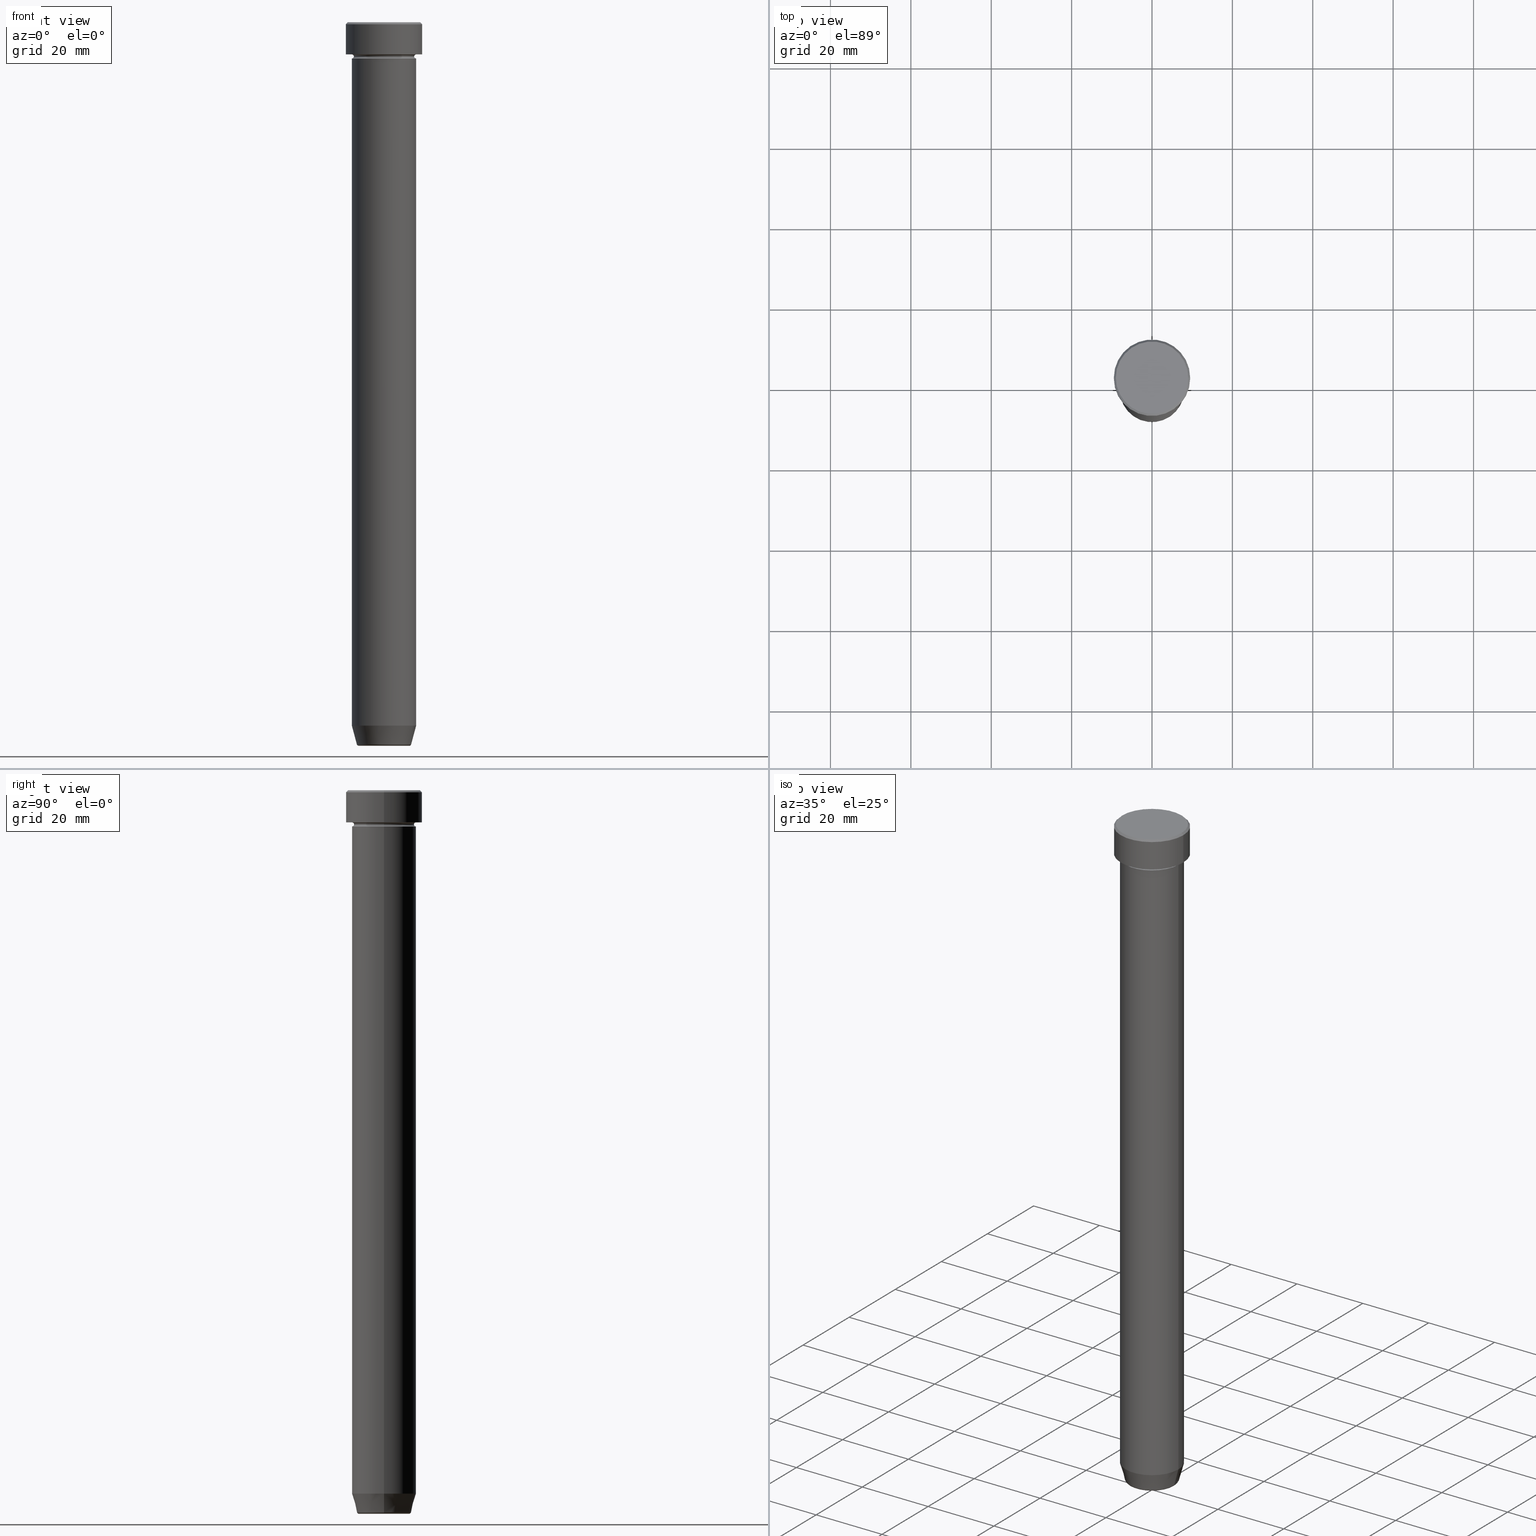
[diagram: canonical four-view strip — front | top / right | iso, engineering-drawing reading convention]
A machine part, canonical four-view strip (front | top / right | iso — engineering-drawing reading convention). The complete STEP part file that produces these views, byte-faithful:
ISO-10303-21;
HEADER;
FILE_DESCRIPTION (( 'STEP AP203' ),
    '1' );
FILE_NAME ('b710.STEP',
    '2024-01-02T22:10:45',
    ( '' ),
    ( '' ),
    'SwSTEP 2.0',
    'SolidWorks 2019',
    '' );
FILE_SCHEMA (( 'CONFIG_CONTROL_DESIGN' ));
ENDSEC;

DATA;
#1 = DIRECTION ( 'NONE',  ( 1.000000000000000000, 0.000000000000000000, 0.000000000000000000 ) ) ;
#2 = CLOSED_SHELL ( 'NONE', ( #471, #402, #593, #491, #192, #5, #418, #537, #510, #165, #506, #456, #296 ) ) ;
#3 = CIRCLE ( 'NONE', #404, 8.000000000000000000 ) ;
#4 = DIRECTION ( 'NONE',  ( 1.000000000000000000, 0.000000000000000000, 0.000000000000000000 ) ) ;
#5 = ADVANCED_FACE ( 'NONE', ( #388 ), #137, .T. ) ;
#6 = MECHANICAL_CONTEXT ( 'NONE', #494, 'mechanical' ) ;
#7 = DIRECTION ( 'NONE',  ( 1.000000000000000000, 0.000000000000000000, 0.000000000000000000 ) ) ;
#8 = ORIENTED_EDGE ( 'NONE', *, *, #336, .T. ) ;
#9 = DIRECTION ( 'NONE',  ( -1.000000000000000000, -1.224646799147353454E-16, 0.000000000000000000 ) ) ;
#10 = CIRCLE ( 'NONE', #136, 8.000000000000000000 ) ;
#11 = LOCAL_TIME ( 23, 10, 45.00000000000000000, #207 ) ;
#12 = DIRECTION ( 'NONE',  ( 1.000000000000000000, 0.000000000000000000, 0.000000000000000000 ) ) ;
#13 = EDGE_CURVE ( 'NONE', #229, #263, #346, .T. ) ;
#14 = CARTESIAN_POINT ( 'NONE',  ( -8.000000000000000000, 9.797174393178825657E-16, 0.000000000000000000 ) ) ;
#15 = CALENDAR_DATE ( 2024, 2, 1 ) ;
#16 = FACE_OUTER_BOUND ( 'NONE', #531, .T. ) ;
#17 = EDGE_LOOP ( 'NONE', ( #349, #227, #99, #46 ) ) ;
#18 = PERSON_AND_ORGANIZATION ( #41, #422 ) ;
#19 = FACE_OUTER_BOUND ( 'NONE', #238, .T. ) ;
#20 = AXIS2_PLACEMENT_3D ( 'NONE', #246, #209, #517 ) ;
#21 = DIRECTION ( 'NONE',  ( -0.000000000000000000, -0.000000000000000000, 1.000000000000000000 ) ) ;
#22 = EDGE_CURVE ( 'NONE', #212, #40, #261, .T. ) ;
#23 = PERSON_AND_ORGANIZATION ( #41, #422 ) ;
#24 = DIRECTION ( 'NONE',  ( -0.000000000000000000, -0.000000000000000000, 1.000000000000000000 ) ) ;
#25 = ORIENTED_EDGE ( 'NONE', *, *, #130, .T. ) ;
#26 = ORIENTED_EDGE ( 'NONE', *, *, #437, .T. ) ;
#27 = CARTESIAN_POINT ( 'NONE',  ( 0.000000000000000000, 0.000000000000000000, -8.000000000000000000 ) ) ;
#28 = CARTESIAN_POINT ( 'NONE',  ( -8.000000000000000000, 9.797174393178825657E-16, -8.500000000000000000 ) ) ;
#29 = AXIS2_PLACEMENT_3D ( 'NONE', #368, #559, #4 ) ;
#30 = AXIS2_PLACEMENT_3D ( 'NONE', #101, #503, #189 ) ;
#31 = EDGE_CURVE ( 'NONE', #54, #538, #279, .T. ) ;
#32 = FACE_OUTER_BOUND ( 'NONE', #533, .T. ) ;
#33 = ORIENTED_EDGE ( 'NONE', *, *, #175, .F. ) ;
#34 = DIRECTION ( 'NONE',  ( 0.000000000000000000, 0.000000000000000000, -1.000000000000000000 ) ) ;
#35 = EDGE_LOOP ( 'NONE', ( #582, #310, #464, #473 ) ) ;
#36 = ORIENTED_EDGE ( 'NONE', *, *, #365, .F. ) ;
#37 = CARTESIAN_POINT ( 'NONE',  ( -7.500000000000000000, 9.491012693391985815E-16, -8.500000000000000000 ) ) ;
#38 = CIRCLE ( 'NONE', #374, 7.500000000000000000 ) ;
#39 = ORIENTED_EDGE ( 'NONE', *, *, #395, .T. ) ;
#40 = VERTEX_POINT ( 'NONE', #452 ) ;
#41 = PERSON ( 'NEUR�EN�', 'NEUR�EN�', 'NEUR�EN�', ('NEUR�EN�'), ('NEUR�EN�'), ('NEUR�EN�') ) ;
#42 = EDGE_CURVE ( 'NONE', #40, #273, #156, .T. ) ;
#43 = CYLINDRICAL_SURFACE ( 'NONE', #470, 8.000000000000000000 ) ;
#44 = VERTEX_POINT ( 'NONE', #557 ) ;
#45 = EDGE_LOOP ( 'NONE', ( #399, #141 ) ) ;
#46 = ORIENTED_EDGE ( 'NONE', *, *, #86, .F. ) ;
#47 = APPLICATION_PROTOCOL_DEFINITION ( 'international standard', 'config_control_design', 1994, #494 ) ;
#48 = CARTESIAN_POINT ( 'NONE',  ( 0.000000000000000000, 0.000000000000000000, -8.500000000000000000 ) ) ;
#49 = EDGE_CURVE ( 'NONE', #273, #40, #589, .T. ) ;
#50 = AXIS2_PLACEMENT_3D ( 'NONE', #446, #61, #496 ) ;
#51 = VECTOR ( 'NONE', #581, 999.9999999999998863 ) ;
#52 = CARTESIAN_POINT ( 'NONE',  ( 0.000000000000000000, 0.000000000000000000, -8.500000000000000000 ) ) ;
#53 = DIRECTION ( 'NONE',  ( -1.000000000000000000, 0.000000000000000000, 0.000000000000000000 ) ) ;
#54 = VERTEX_POINT ( 'NONE', #186 ) ;
#55 = ORIENTED_EDGE ( 'NONE', *, *, #69, .T. ) ;
#56 = CYLINDRICAL_SURFACE ( 'NONE', #90, 9.500000000000000000 ) ;
#57 = EDGE_LOOP ( 'NONE', ( #488, #216, #390, #177 ) ) ;
#58 = CARTESIAN_POINT ( 'NONE',  ( 9.500000000000000000, 0.000000000000000000, -8.000000000000000000 ) ) ;
#59 = EDGE_CURVE ( 'NONE', #308, #585, #406, .T. ) ;
#60 = CARTESIAN_POINT ( 'NONE',  ( -6.276590543854910997, 7.982336011935130216E-16, -180.0000000000000000 ) ) ;
#61 = DIRECTION ( 'NONE',  ( 0.000000000000000000, 0.000000000000000000, -1.000000000000000000 ) ) ;
#62 = CIRCLE ( 'NONE', #480, 0.5000000000000004441 ) ;
#63 = APPROVAL_ROLE ( '' ) ;
#64 = DIRECTION ( 'NONE',  ( -0.000000000000000000, -0.000000000000000000, 1.000000000000000000 ) ) ;
#65 = SHAPE_DEFINITION_REPRESENTATION ( #385, #580 ) ;
#66 = FACE_OUTER_BOUND ( 'NONE', #551, .T. ) ;
#67 = DATE_AND_TIME ( #15, #11 ) ;
#68 = LINE ( 'NONE', #378, #241 ) ;
#69 = EDGE_CURVE ( 'NONE', #525, #273, #408, .T. ) ;
#70 = AXIS2_PLACEMENT_3D ( 'NONE', #366, #244, #140 ) ;
#71 = AXIS2_PLACEMENT_3D ( 'NONE', #474, #427, #211 ) ;
#72 = CALENDAR_DATE ( 2024, 2, 1 ) ;
#73 = FACE_OUTER_BOUND ( 'NONE', #309, .T. ) ;
#74 = DATE_AND_TIME ( #245, #364 ) ;
#75 = FACE_OUTER_BOUND ( 'NONE', #57, .T. ) ;
#76 = EDGE_CURVE ( 'NONE', #91, #80, #518, .T. ) ;
#77 = CARTESIAN_POINT ( 'NONE',  ( 0.000000000000000000, 0.000000000000000000, -179.6294095225512422 ) ) ;
#78 = DIRECTION ( 'NONE',  ( 0.000000000000000000, 0.000000000000000000, -1.000000000000000000 ) ) ;
#79 = AXIS2_PLACEMENT_3D ( 'NONE', #27, #24, #247 ) ;
#80 = VERTEX_POINT ( 'NONE', #151 ) ;
#81 = DIRECTION ( 'NONE',  ( -1.000000000000000000, 0.000000000000000000, 0.000000000000000000 ) ) ;
#82 = ORIENTED_EDGE ( 'NONE', *, *, #336, .F. ) ;
#83 = FACE_OUTER_BOUND ( 'NONE', #131, .T. ) ;
#84 = VERTEX_POINT ( 'NONE', #289 ) ;
#85 = ORIENTED_EDGE ( 'NONE', *, *, #201, .F. ) ;
#86 = EDGE_CURVE ( 'NONE', #80, #529, #231, .T. ) ;
#87 = CARTESIAN_POINT ( 'NONE',  ( 8.000000000000000000, 0.000000000000000000, 0.000000000000000000 ) ) ;
#88 = CIRCLE ( 'NONE', #322, 8.000000000000000000 ) ;
#89 = ORIENTED_EDGE ( 'NONE', *, *, #184, .F. ) ;
#90 = AXIS2_PLACEMENT_3D ( 'NONE', #362, #237, #145 ) ;
#91 = VERTEX_POINT ( 'NONE', #325 ) ;
#92 = ORIENTED_EDGE ( 'NONE', *, *, #254, .F. ) ;
#93 = CC_DESIGN_PERSON_AND_ORGANIZATION_ASSIGNMENT ( #96, #278, ( #571 ) ) ;
#94 = DIRECTION ( 'NONE',  ( 1.000000000000000000, 0.000000000000000000, 0.000000000000000000 ) ) ;
#95 = ORIENTED_EDGE ( 'NONE', *, *, #86, .T. ) ;
#96 = PERSON_AND_ORGANIZATION ( #41, #422 ) ;
#97 = DIRECTION ( 'NONE',  ( 1.000000000000000000, 0.000000000000000000, 0.000000000000000000 ) ) ;
#98 = VECTOR ( 'NONE', #591, 999.9999999999998863 ) ;
#99 = ORIENTED_EDGE ( 'NONE', *, *, #443, .T. ) ;
#100 = AXIS2_PLACEMENT_3D ( 'NONE', #570, #162, #329 ) ;
#101 = CARTESIAN_POINT ( 'NONE',  ( 0.000000000000000000, 9.500000000000000000, -8.000000000000000000 ) ) ;
#102 = DIRECTION ( 'NONE',  ( -0.000000000000000000, -0.000000000000000000, 1.000000000000000000 ) ) ;
#103 = EDGE_CURVE ( 'NONE', #380, #229, #552, .T. ) ;
#104 = DIRECTION ( 'NONE',  ( -0.000000000000000000, -0.000000000000000000, 1.000000000000000000 ) ) ;
#105 = CARTESIAN_POINT ( 'NONE',  ( 0.000000000000000000, 0.000000000000000000, -0.4999999999999968914 ) ) ;
#106 = CC_DESIGN_DATE_AND_TIME_ASSIGNMENT ( #67, #369, ( #521 ) ) ;
#107 = CARTESIAN_POINT ( 'NONE',  ( -8.000000000000000000, 9.797174393178825657E-16, 0.000000000000000000 ) ) ;
#108 = PRODUCT_DEFINITION_FORMATION_WITH_SPECIFIED_SOURCE ( 'LIBOVOLN�', '', #571, .NOT_KNOWN. ) ;
#109 = DIRECTION ( 'NONE',  ( 1.000000000000000000, 0.000000000000000000, 0.000000000000000000 ) ) ;
#110 = EDGE_CURVE ( 'NONE', #91, #400, #124, .T. ) ;
#111 = CARTESIAN_POINT ( 'NONE',  ( -8.000000000000000000, 9.797174393178825657E-16, -22.00000000000000000 ) ) ;
#112 = EDGE_LOOP ( 'NONE', ( #534, #594, #276, #504 ) ) ;
#113 = PERSON_AND_ORGANIZATION ( #41, #422 ) ;
#114 = DIRECTION ( 'NONE',  ( 1.000000000000000000, 0.000000000000000000, 0.000000000000000000 ) ) ;
#115 = AXIS2_PLACEMENT_3D ( 'NONE', #514, #476, #256 ) ;
#116 = CC_DESIGN_APPROVAL ( #495, ( #108 ) ) ;
#117 = CARTESIAN_POINT ( 'NONE',  ( 0.000000000000000000, 0.000000000000000000, -22.00000000000000000 ) ) ;
#118 = EDGE_CURVE ( 'NONE', #436, #401, #146, .T. ) ;
#119 = CARTESIAN_POINT ( 'NONE',  ( 8.000000000000000000, 0.000000000000000000, -22.00000000000000000 ) ) ;
#120 = PLANE ( 'NONE',  #232 ) ;
#121 = VERTEX_POINT ( 'NONE', #58 ) ;
#122 = ORIENTED_EDGE ( 'NONE', *, *, #13, .F. ) ;
#123 = ORIENTED_EDGE ( 'NONE', *, *, #103, .T. ) ;
#124 = CIRCLE ( 'NONE', #447, 7.500000000000000000 ) ;
#125 = DIRECTION ( 'NONE',  ( 0.000000000000000000, 0.000000000000000000, -1.000000000000000000 ) ) ;
#126 = CIRCLE ( 'NONE', #305, 8.000000000000000000 ) ;
#127 = ORIENTED_EDGE ( 'NONE', *, *, #42, .F. ) ;
#128 = CARTESIAN_POINT ( 'NONE',  ( 0.000000000000000000, 0.000000000000000000, -22.00000000000000000 ) ) ;
#129 = DIRECTION ( 'NONE',  ( 0.000000000000000000, 0.000000000000000000, -1.000000000000000000 ) ) ;
#130 = EDGE_CURVE ( 'NONE', #585, #401, #147, .T. ) ;
#131 = EDGE_LOOP ( 'NONE', ( #134, #55, #127, #226 ) ) ;
#132 = CARTESIAN_POINT ( 'NONE',  ( -8.000000000000000000, 0.000000000000000000, -8.500000000000000000 ) ) ;
#133 = ORIENTED_EDGE ( 'NONE', *, *, #208, .T. ) ;
#134 = ORIENTED_EDGE ( 'NONE', *, *, #351, .F. ) ;
#135 = FACE_OUTER_BOUND ( 'NONE', #343, .T. ) ;
#136 = AXIS2_PLACEMENT_3D ( 'NONE', #592, #180, #170 ) ;
#137 = PLANE ( 'NONE',  #403 ) ;
#138 = EDGE_CURVE ( 'NONE', #44, #393, #501, .T. ) ;
#139 = FACE_OUTER_BOUND ( 'NONE', #547, .T. ) ;
#140 = DIRECTION ( 'NONE',  ( 1.000000000000000000, 0.000000000000000000, 0.000000000000000000 ) ) ;
#141 = ORIENTED_EDGE ( 'NONE', *, *, #527, .T. ) ;
#142 = DIRECTION ( 'NONE',  ( 0.000000000000000000, 0.000000000000000000, 1.000000000000000000 ) ) ;
#143 = CARTESIAN_POINT ( 'NONE',  ( 0.000000000000000000, 0.000000000000000000, -9.000000000000001776 ) ) ;
#144 = ORIENTED_EDGE ( 'NONE', *, *, #443, .F. ) ;
#145 = DIRECTION ( 'NONE',  ( 1.000000000000000000, 0.000000000000000000, 0.000000000000000000 ) ) ;
#146 = LINE ( 'NONE', #14, #248 ) ;
#147 = CIRCLE ( 'NONE', #174, 8.000000000000000000 ) ;
#148 = CIRCLE ( 'NONE', #459, 8.000000000000000000 ) ;
#149 = AXIS2_PLACEMENT_3D ( 'NONE', #543, #150, #558 ) ;
#150 = DIRECTION ( 'NONE',  ( -0.000000000000000000, -0.000000000000000000, 1.000000000000000000 ) ) ;
#151 = CARTESIAN_POINT ( 'NONE',  ( 8.000000000000000000, 9.797174393178825657E-16, -8.000000000000000000 ) ) ;
#152 = ADVANCED_FACE ( 'NONE', ( #460 ), #320, .T. ) ;
#153 = DIRECTION ( 'NONE',  ( 0.000000000000000000, 0.000000000000000000, -1.000000000000000000 ) ) ;
#154 = PERSON_AND_ORGANIZATION_ROLE ( 'creator' ) ;
#155 = CARTESIAN_POINT ( 'NONE',  ( 0.000000000000000000, 0.000000000000000000, -22.00000000000000000 ) ) ;
#156 = CIRCLE ( 'NONE', #50, 9.500000000000000000 ) ;
#157 = CIRCLE ( 'NONE', #579, 6.276590543854910997 ) ;
#158 = EDGE_CURVE ( 'NONE', #393, #380, #317, .T. ) ;
#159 = DIRECTION ( 'NONE',  ( 1.000000000000000000, 0.000000000000000000, 0.000000000000000000 ) ) ;
#160 = DATE_TIME_ROLE ( 'creation_date' ) ;
#161 = APPROVAL ( #379, 'NEUR�EN�' ) ;
#162 = DIRECTION ( 'NONE',  ( -0.000000000000000000, -0.000000000000000000, 1.000000000000000000 ) ) ;
#163 = APPROVAL_DATE_TIME ( #371, #161 ) ;
#164 = CARTESIAN_POINT ( 'NONE',  ( 0.000000000000000000, 0.000000000000000000, -180.0000000000000000 ) ) ;
#165 = ADVANCED_FACE ( 'NONE', ( #454 ), #275, .T. ) ;
#166 = AXIS2_PLACEMENT_3D ( 'NONE', #265, #584, #34 ) ;
#167 = AXIS2_PLACEMENT_3D ( 'NONE', #367, #284, #321 ) ;
#168 = DIRECTION ( 'NONE',  ( -1.000000000000000000, 0.000000000000000000, -0.000000000000000000 ) ) ;
#169 = ORIENTED_EDGE ( 'NONE', *, *, #138, .T. ) ;
#170 = DIRECTION ( 'NONE',  ( 1.000000000000000000, 0.000000000000000000, 0.000000000000000000 ) ) ;
#171 = EDGE_LOOP ( 'NONE', ( #439, #206, #39, #122 ) ) ;
#172 = CARTESIAN_POINT ( 'NONE',  ( -8.000000000000000000, 9.797174393178825657E-16, -175.0000000000000000 ) ) ;
#173 = ORIENTED_EDGE ( 'NONE', *, *, #59, .F. ) ;
#174 = AXIS2_PLACEMENT_3D ( 'NONE', #143, #64, #287 ) ;
#175 = EDGE_CURVE ( 'NONE', #448, #40, #233, .T. ) ;
#176 = CONICAL_SURFACE ( 'NONE', #297, 9.000000000000001776, 0.7853981633974501664 ) ;
#177 = ORIENTED_EDGE ( 'NONE', *, *, #49, .F. ) ;
#178 = CARTESIAN_POINT ( 'NONE',  ( 0.000000000000000000, 0.000000000000000000, 0.000000000000000000 ) ) ;
#179 = ORIENTED_EDGE ( 'NONE', *, *, #236, .T. ) ;
#180 = DIRECTION ( 'NONE',  ( -0.000000000000000000, -0.000000000000000000, 1.000000000000000000 ) ) ;
#181 = ORIENTED_EDGE ( 'NONE', *, *, #201, .T. ) ;
#182 = FACE_BOUND ( 'NONE', #397, .T. ) ;
#183 = ORIENTED_EDGE ( 'NONE', *, *, #382, .F. ) ;
#184 = EDGE_CURVE ( 'NONE', #84, #380, #88, .T. ) ;
#185 = CIRCLE ( 'NONE', #511, 9.000000000000001776 ) ;
#186 = CARTESIAN_POINT ( 'NONE',  ( 6.276590543854910997, 0.000000000000000000, -180.0000000000000000 ) ) ;
#187 = APPROVAL_PERSON_ORGANIZATION ( #113, #161, #63 ) ;
#188 = DIRECTION ( 'NONE',  ( -0.000000000000000000, -0.000000000000000000, 1.000000000000000000 ) ) ;
#189 = DIRECTION ( 'NONE',  ( -1.000000000000000000, 0.000000000000000000, -0.000000000000000000 ) ) ;
#190 = CARTESIAN_POINT ( 'NONE',  ( -6.660254037844388186, 8.156458788954364706E-16, -180.0000000000000000 ) ) ;
#191 = FACE_OUTER_BOUND ( 'NONE', #277, .T. ) ;
#192 = ADVANCED_FACE ( 'NONE', ( #235 ), #505, .T. ) ;
#193 = DIRECTION ( 'NONE',  ( -1.000000000000000000, 0.000000000000000000, 0.000000000000000000 ) ) ;
#194 = CONICAL_SURFACE ( 'NONE', #71, 9.000000000000001776, 0.7853981633974501664 ) ;
#195 = APPROVAL_PERSON_ORGANIZATION ( #377, #495, #252 ) ;
#196 = ORIENTED_EDGE ( 'NONE', *, *, #158, .T. ) ;
#197 = DIRECTION ( 'NONE',  ( 1.000000000000000000, 0.000000000000000000, 0.000000000000000000 ) ) ;
#198 = CC_DESIGN_PERSON_AND_ORGANIZATION_ASSIGNMENT ( #573, #425, ( #108 ) ) ;
#199 = DIRECTION ( 'NONE',  ( -0.000000000000000000, -0.000000000000000000, 1.000000000000000000 ) ) ;
#200 = PERSON_AND_ORGANIZATION_ROLE ( 'classification_officer' ) ;
#201 = EDGE_CURVE ( 'NONE', #400, #91, #38, .T. ) ;
#202 = CYLINDRICAL_SURFACE ( 'NONE', #469, 8.000000000000000000 ) ;
#203 = AXIS2_PLACEMENT_3D ( 'NONE', #77, #376, #415 ) ;
#204 = LOCAL_TIME ( 23, 10, 45.00000000000000000, #461 ) ;
#205 = CARTESIAN_POINT ( 'NONE',  ( 0.000000000000000000, 0.000000000000000000, -8.000000000000000000 ) ) ;
#206 = ORIENTED_EDGE ( 'NONE', *, *, #382, .T. ) ;
#207 = COORDINATED_UNIVERSAL_TIME_OFFSET ( 1, 0, .AHEAD. ) ;
#208 = EDGE_CURVE ( 'NONE', #54, #44, #430, .T. ) ;
#209 = DIRECTION ( 'NONE',  ( 0.000000000000000000, -1.000000000000000000, 0.000000000000000000 ) ) ;
#210 = APPROVAL_DATE_TIME ( #516, #495 ) ;
#211 = DIRECTION ( 'NONE',  ( -1.000000000000000000, 0.000000000000000000, 0.000000000000000000 ) ) ;
#212 = VERTEX_POINT ( 'NONE', #417 ) ;
#213 = VECTOR ( 'NONE', #350, 1000.000000000000000 ) ;
#214 = LINE ( 'NONE', #386, #51 ) ;
#215 = DIRECTION ( 'NONE',  ( -0.000000000000000000, -0.000000000000000000, 1.000000000000000000 ) ) ;
#216 = ORIENTED_EDGE ( 'NONE', *, *, #550, .F. ) ;
#217 = EDGE_CURVE ( 'NONE', #529, #80, #3, .T. ) ;
#218 = FACE_OUTER_BOUND ( 'NONE', #17, .T. ) ;
#219 = ORIENTED_EDGE ( 'NONE', *, *, #130, .F. ) ;
#220 = CLOSED_SHELL ( 'NONE', ( #152, #357, #341, #283, #560, #267, #301, #326 ) ) ;
#221 = CIRCLE ( 'NONE', #502, 0.5000000000000004441 ) ;
#222 = EDGE_LOOP ( 'NONE', ( #82, #271 ) ) ;
#223 = ORIENTED_EDGE ( 'NONE', *, *, #318, .T. ) ;
#224 = FACE_OUTER_BOUND ( 'NONE', #597, .T. ) ;
#225 = EDGE_CURVE ( 'NONE', #121, #273, #68, .T. ) ;
#226 = ORIENTED_EDGE ( 'NONE', *, *, #22, .F. ) ;
#227 = ORIENTED_EDGE ( 'NONE', *, *, #110, .T. ) ;
#228 = ORIENTED_EDGE ( 'NONE', *, *, #158, .F. ) ;
#229 = VERTEX_POINT ( 'NONE', #111 ) ;
#230 = PLANE ( 'NONE',  #30 ) ;
#231 = CIRCLE ( 'NONE', #565, 8.000000000000000000 ) ;
#232 = AXIS2_PLACEMENT_3D ( 'NONE', #477, #387, #528 ) ;
#233 = LINE ( 'NONE', #500, #313 ) ;
#234 =( NAMED_UNIT ( * ) SI_UNIT ( $, .STERADIAN. ) SOLID_ANGLE_UNIT ( ) );
#235 = FACE_OUTER_BOUND ( 'NONE', #398, .T. ) ;
#236 = EDGE_CURVE ( 'NONE', #121, #448, #421, .T. ) ;
#237 = DIRECTION ( 'NONE',  ( -0.000000000000000000, -0.000000000000000000, 1.000000000000000000 ) ) ;
#238 = EDGE_LOOP ( 'NONE', ( #540, #123, #303, #444 ) ) ;
#239 = CARTESIAN_POINT ( 'NONE',  ( 0.000000000000000000, 0.000000000000000000, -180.0000000000000000 ) ) ;
#240 = DIRECTION ( 'NONE',  ( -0.000000000000000000, -0.000000000000000000, 1.000000000000000000 ) ) ;
#241 = VECTOR ( 'NONE', #575, 1000.000000000000000 ) ;
#242 = CC_DESIGN_APPROVAL ( #161, ( #521 ) ) ;
#243 = EDGE_CURVE ( 'NONE', #436, #308, #148, .T. ) ;
#244 = DIRECTION ( 'NONE',  ( -0.000000000000000000, -0.000000000000000000, 1.000000000000000000 ) ) ;
#245 = CALENDAR_DATE ( 2024, 2, 1 ) ;
#246 = CARTESIAN_POINT ( 'NONE',  ( 6.276590543854910997, 0.000000000000000000, -179.5000000000000000 ) ) ;
#247 = DIRECTION ( 'NONE',  ( 1.000000000000000000, 0.000000000000000000, 0.000000000000000000 ) ) ;
#248 = VECTOR ( 'NONE', #508, 1000.000000000000000 ) ;
#249 = CIRCLE ( 'NONE', #578, 9.500000000000000000 ) ;
#250 = CIRCLE ( 'NONE', #167, 9.000000000000001776 ) ;
#251 = EDGE_LOOP ( 'NONE', ( #85, #442, #334, #36 ) ) ;
#252 = APPROVAL_ROLE ( '' ) ;
#253 = DIRECTION ( 'NONE',  ( 1.000000000000000000, 0.000000000000000000, 0.000000000000000000 ) ) ;
#254 = EDGE_CURVE ( 'NONE', #448, #121, #249, .T. ) ;
#255 = APPROVAL_STATUS ( 'not_yet_approved' ) ;
#256 = DIRECTION ( 'NONE',  ( 1.000000000000000000, 0.000000000000000000, 0.000000000000000000 ) ) ;
#257 = CARTESIAN_POINT ( 'NONE',  ( -6.759553456999441323, 9.037619948979308185E-16, -179.6294095225512422 ) ) ;
#258 = APPROVAL_PERSON_ORGANIZATION ( #360, #583, #569 ) ;
#259 = DIRECTION ( 'NONE',  ( 1.224646799147353207E-16, 1.000000000000000000, 0.000000000000000000 ) ) ;
#260 = CC_DESIGN_DATE_AND_TIME_ASSIGNMENT ( #416, #160, ( #288 ) ) ;
#261 = LINE ( 'NONE', #434, #98 ) ;
#262 = DIRECTION ( 'NONE',  ( -0.000000000000000000, -1.000000000000000000, -0.000000000000000000 ) ) ;
#263 = VERTEX_POINT ( 'NONE', #293 ) ;
#264 = CC_DESIGN_PERSON_AND_ORGANIZATION_ASSIGNMENT ( #472, #294, ( #108 ) ) ;
#265 = CARTESIAN_POINT ( 'NONE',  ( 8.000000000000000000, 0.000000000000000000, -8.500000000000000000 ) ) ;
#266 = ORIENTED_EDGE ( 'NONE', *, *, #110, .F. ) ;
#267 = ADVANCED_FACE ( 'NONE', ( #66 ), #392, .T. ) ;
#268 = AXIS2_PLACEMENT_3D ( 'NONE', #544, #199, #193 ) ;
#269 = TOROIDAL_SURFACE ( 'NONE', #100, 6.276590543854910997, 0.5000000000000000000 ) ;
#270 = FACE_OUTER_BOUND ( 'NONE', #561, .T. ) ;
#271 = ORIENTED_EDGE ( 'NONE', *, *, #243, .F. ) ;
#272 = CARTESIAN_POINT ( 'NONE',  ( 0.000000000000000000, 0.000000000000000000, -22.00000000000000000 ) ) ;
#273 = VERTEX_POINT ( 'NONE', #523 ) ;
#274 = CARTESIAN_POINT ( 'NONE',  ( 0.000000000000000000, 0.000000000000000000, 0.000000000000000000 ) ) ;
#275 = CYLINDRICAL_SURFACE ( 'NONE', #29, 8.000000000000000000 ) ;
#276 = ORIENTED_EDGE ( 'NONE', *, *, #59, .T. ) ;
#277 = EDGE_LOOP ( 'NONE', ( #33, #433, #572, #542 ) ) ;
#278 = PERSON_AND_ORGANIZATION_ROLE ( 'design_owner' ) ;
#279 = CIRCLE ( 'NONE', #383, 6.276590543854910997 ) ;
#280 = AXIS2_PLACEMENT_3D ( 'NONE', #117, #299, #168 ) ;
#281 = DIRECTION ( 'NONE',  ( -0.000000000000000000, -0.000000000000000000, 1.000000000000000000 ) ) ;
#282 = ORIENTED_EDGE ( 'NONE', *, *, #42, .T. ) ;
#283 = ADVANCED_FACE ( 'NONE', ( #73 ), #519, .F. ) ;
#284 = DIRECTION ( 'NONE',  ( -0.000000000000000000, -0.000000000000000000, 1.000000000000000000 ) ) ;
#285 = CARTESIAN_POINT ( 'NONE',  ( 0.000000000000000000, 0.000000000000000000, -8.000000000000000000 ) ) ;
#286 = DIRECTION ( 'NONE',  ( 1.000000000000000000, 0.000000000000000000, 0.000000000000000000 ) ) ;
#287 = DIRECTION ( 'NONE',  ( 1.000000000000000000, 0.000000000000000000, 0.000000000000000000 ) ) ;
#288 = PRODUCT_DEFINITION ( 'NEZN�M�', '', #108, #586 ) ;
#289 = CARTESIAN_POINT ( 'NONE',  ( 8.000000000000000000, 0.000000000000000000, -175.0000000000000000 ) ) ;
#290 = CIRCLE ( 'NONE', #449, 0.5000000000000004441 ) ;
#291 = CARTESIAN_POINT ( 'NONE',  ( 0.000000000000000000, 0.000000000000000000, -8.000000000000000000 ) ) ;
#292 = COORDINATED_UNIVERSAL_TIME_OFFSET ( 1, 0, .AHEAD. ) ;
#293 = CARTESIAN_POINT ( 'NONE',  ( 8.000000000000000000, 0.000000000000000000, -22.00000000000000000 ) ) ;
#294 = PERSON_AND_ORGANIZATION_ROLE ( 'design_supplier' ) ;
#295 = CARTESIAN_POINT ( 'NONE',  ( 0.000000000000000000, 0.000000000000000000, 0.000000000000000000 ) ) ;
#296 = ADVANCED_FACE ( 'NONE', ( #75 ), #194, .T. ) ;
#297 = AXIS2_PLACEMENT_3D ( 'NONE', #524, #78, #487 ) ;
#298 = AXIS2_PLACEMENT_3D ( 'NONE', #274, #142, #445 ) ;
#299 = DIRECTION ( 'NONE',  ( 0.000000000000000000, 0.000000000000000000, -1.000000000000000000 ) ) ;
#300 = DIRECTION ( 'NONE',  ( -0.000000000000000000, -0.000000000000000000, 1.000000000000000000 ) ) ;
#301 = ADVANCED_FACE ( 'NONE', ( #381 ), #577, .F. ) ;
#302 = DIRECTION ( 'NONE',  ( -0.000000000000000000, -0.000000000000000000, 1.000000000000000000 ) ) ;
#303 = ORIENTED_EDGE ( 'NONE', *, *, #574, .F. ) ;
#304 = VECTOR ( 'NONE', #102, 1000.000000000000000 ) ;
#305 = AXIS2_PLACEMENT_3D ( 'NONE', #307, #302, #535 ) ;
#306 = CC_DESIGN_APPROVAL ( #583, ( #288 ) ) ;
#307 = CARTESIAN_POINT ( 'NONE',  ( 0.000000000000000000, 0.000000000000000000, -9.000000000000001776 ) ) ;
#308 = VERTEX_POINT ( 'NONE', #119 ) ;
#309 = EDGE_LOOP ( 'NONE', ( #587, #515 ) ) ;
#310 = ORIENTED_EDGE ( 'NONE', *, *, #482, .T. ) ;
#311 = DIRECTION ( 'NONE',  ( 0.000000000000000000, 0.000000000000000000, -1.000000000000000000 ) ) ;
#312 = ORIENTED_EDGE ( 'NONE', *, *, #76, .T. ) ;
#313 = VECTOR ( 'NONE', #188, 1000.000000000000000 ) ;
#314 = DIRECTION ( 'NONE',  ( 1.000000000000000000, 0.000000000000000000, 0.000000000000000000 ) ) ;
#315 = CC_DESIGN_SECURITY_CLASSIFICATION ( #521, ( #108 ) ) ;
#316 = ORIENTED_EDGE ( 'NONE', *, *, #351, .T. ) ;
#317 = LINE ( 'NONE', #190, #363 ) ;
#318 = EDGE_CURVE ( 'NONE', #393, #44, #520, .T. ) ;
#319 = CARTESIAN_POINT ( 'NONE',  ( 8.000000000000000000, 9.797174393178825657E-16, -8.500000000000000000 ) ) ;
#320 = TOROIDAL_SURFACE ( 'NONE', #70, 6.276590543854910997, 0.5000000000000000000 ) ;
#321 = DIRECTION ( 'NONE',  ( 1.000000000000000000, 0.000000000000000000, 0.000000000000000000 ) ) ;
#322 = AXIS2_PLACEMENT_3D ( 'NONE', #359, #323, #97 ) ;
#323 = DIRECTION ( 'NONE',  ( -0.000000000000000000, -0.000000000000000000, 1.000000000000000000 ) ) ;
#324 = DIRECTION ( 'NONE',  ( -0.000000000000000000, -0.000000000000000000, 1.000000000000000000 ) ) ;
#325 = CARTESIAN_POINT ( 'NONE',  ( 7.500000000000000000, 0.000000000000000000, -8.500000000000000000 ) ) ;
#326 = ADVANCED_FACE ( 'NONE', ( #16 ), #269, .T. ) ;
#327 = DIRECTION ( 'NONE',  ( -1.224646799147353207E-16, 1.000000000000000000, 0.000000000000000000 ) ) ;
#328 = MANIFOLD_SOLID_BREP ( 'Zkosen�1', #2 ) ;
#329 = DIRECTION ( 'NONE',  ( 1.000000000000000000, 0.000000000000000000, 0.000000000000000000 ) ) ;
#330 = TOROIDAL_SURFACE ( 'NONE', #541, 8.000000000000000000, 0.5000000000000000000 ) ;
#331 = MANIFOLD_SOLID_BREP ( 'Zaoblit4', #220 ) ;
#332 = CALENDAR_DATE ( 2024, 2, 1 ) ;
#333 = DIRECTION ( 'NONE',  ( 0.000000000000000000, -0.000000000000000000, 1.000000000000000000 ) ) ;
#334 = ORIENTED_EDGE ( 'NONE', *, *, #426, .T. ) ;
#335 = COORDINATED_UNIVERSAL_TIME_OFFSET ( 1, 0, .AHEAD. ) ;
#336 = EDGE_CURVE ( 'NONE', #308, #436, #355, .T. ) ;
#337 = DIRECTION ( 'NONE',  ( -0.000000000000000000, -0.000000000000000000, 1.000000000000000000 ) ) ;
#338 = DIRECTION ( 'NONE',  ( 1.000000000000000000, 0.000000000000000000, 0.000000000000000000 ) ) ;
#339 = AXIS2_PLACEMENT_3D ( 'NONE', #164, #300, #338 ) ;
#340 = CARTESIAN_POINT ( 'NONE',  ( 0.000000000000000000, 1.592040838891559450E-14, -180.0000000000000000 ) ) ;
#341 = ADVANCED_FACE ( 'NONE', ( #19 ), #202, .T. ) ;
#342 = LINE ( 'NONE', #87, #213 ) ;
#343 = EDGE_LOOP ( 'NONE', ( #555, #316 ) ) ;
#344 = DIRECTION ( 'NONE',  ( -0.000000000000000000, -0.000000000000000000, 1.000000000000000000 ) ) ;
#345 = DIRECTION ( 'NONE',  ( 0.000000000000000000, 0.000000000000000000, -1.000000000000000000 ) ) ;
#346 = CIRCLE ( 'NONE', #391, 8.000000000000000000 ) ;
#347 = AXIS2_PLACEMENT_3D ( 'NONE', #588, #129, #396 ) ;
#348 = CARTESIAN_POINT ( 'NONE',  ( -8.000000000000000000, 9.797174393178825657E-16, -9.000000000000001776 ) ) ;
#349 = ORIENTED_EDGE ( 'NONE', *, *, #76, .F. ) ;
#350 = DIRECTION ( 'NONE',  ( -0.000000000000000000, -0.000000000000000000, 1.000000000000000000 ) ) ;
#351 = EDGE_CURVE ( 'NONE', #525, #212, #185, .T. ) ;
#352 = DIRECTION ( 'NONE',  ( -1.000000000000000000, 0.000000000000000000, -0.000000000000000000 ) ) ;
#353 = CARTESIAN_POINT ( 'NONE',  ( 0.000000000000000000, 0.000000000000000000, -8.500000000000000000 ) ) ;
#354 = ORIENTED_EDGE ( 'NONE', *, *, #175, .T. ) ;
#355 = CIRCLE ( 'NONE', #590, 8.000000000000000000 ) ;
#356 = DIRECTION ( 'NONE',  ( 0.7071067811865489050, 8.659560562354950115E-17, -0.7071067811865462405 ) ) ;
#357 = ADVANCED_FACE ( 'NONE', ( #428 ), #384, .T. ) ;
#358 = CARTESIAN_POINT ( 'NONE',  ( 0.000000000000000000, 0.000000000000000000, -180.0000000000000000 ) ) ;
#359 = CARTESIAN_POINT ( 'NONE',  ( 0.000000000000000000, 0.000000000000000000, -175.0000000000000000 ) ) ;
#360 = PERSON_AND_ORGANIZATION ( #41, #422 ) ;
#361 = DIRECTION ( 'NONE',  ( 0.000000000000000000, 0.000000000000000000, -1.000000000000000000 ) ) ;
#362 = CARTESIAN_POINT ( 'NONE',  ( 0.000000000000000000, 0.000000000000000000, 0.000000000000000000 ) ) ;
#363 = VECTOR ( 'NONE', #457, 999.9999999999998863 ) ;
#364 = LOCAL_TIME ( 23, 10, 45.00000000000000000, #292 ) ;
#365 = EDGE_CURVE ( 'NONE', #91, #585, #566, .T. ) ;
#366 = CARTESIAN_POINT ( 'NONE',  ( 0.000000000000000000, 0.000000000000000000, -179.5000000000000000 ) ) ;
#367 = CARTESIAN_POINT ( 'NONE',  ( 0.000000000000000000, 0.000000000000000000, 0.000000000000000000 ) ) ;
#368 = CARTESIAN_POINT ( 'NONE',  ( 0.000000000000000000, 0.000000000000000000, 0.000000000000000000 ) ) ;
#369 = DATE_TIME_ROLE ( 'classification_date' ) ;
#370 = DIRECTION ( 'NONE',  ( 1.000000000000000000, 0.000000000000000000, 0.000000000000000000 ) ) ;
#371 = DATE_AND_TIME ( #562, #204 ) ;
#372 = CARTESIAN_POINT ( 'NONE',  ( 0.000000000000000000, 0.000000000000000000, 0.000000000000000000 ) ) ;
#373 = VECTOR ( 'NONE', #240, 1000.000000000000000 ) ;
#374 = AXIS2_PLACEMENT_3D ( 'NONE', #468, #463, #253 ) ;
#375 = EDGE_CURVE ( 'NONE', #400, #401, #62, .T. ) ;
#376 = DIRECTION ( 'NONE',  ( -0.000000000000000000, -0.000000000000000000, 1.000000000000000000 ) ) ;
#377 = PERSON_AND_ORGANIZATION ( #41, #422 ) ;
#378 = CARTESIAN_POINT ( 'NONE',  ( 9.500000000000000000, 0.000000000000000000, 0.000000000000000000 ) ) ;
#379 = APPROVAL_STATUS ( 'not_yet_approved' ) ;
#380 = VERTEX_POINT ( 'NONE', #172 ) ;
#381 = FACE_OUTER_BOUND ( 'NONE', #45, .T. ) ;
#382 = EDGE_CURVE ( 'NONE', #380, #84, #10, .T. ) ;
#383 = AXIS2_PLACEMENT_3D ( 'NONE', #239, #153, #1 ) ;
#384 = CONICAL_SURFACE ( 'NONE', #553, 6.660254037844388186, 0.2617993877991489082 ) ;
#385 = PRODUCT_DEFINITION_SHAPE ( 'NONE', 'NONE',  #288 ) ;
#386 = CARTESIAN_POINT ( 'NONE',  ( 6.660254037844388186, 0.000000000000000000, -180.0000000000000000 ) ) ;
#387 = DIRECTION ( 'NONE',  ( 0.000000000000000000, -0.000000000000000000, 1.000000000000000000 ) ) ;
#388 = FACE_OUTER_BOUND ( 'NONE', #222, .T. ) ;
#389 = DIRECTION ( 'NONE',  ( 1.224646799147353207E-16, 1.000000000000000000, 0.000000000000000000 ) ) ;
#390 = ORIENTED_EDGE ( 'NONE', *, *, #22, .T. ) ;
#391 = AXIS2_PLACEMENT_3D ( 'NONE', #128, #526, #479 ) ;
#392 = CONICAL_SURFACE ( 'NONE', #339, 6.660254037844388186, 0.2617993877991489082 ) ;
#393 = VERTEX_POINT ( 'NONE', #257 ) ;
#394 = AXIS2_PLACEMENT_3D ( 'NONE', #353, #411, #12 ) ;
#395 = EDGE_CURVE ( 'NONE', #84, #263, #342, .T. ) ;
#396 = DIRECTION ( 'NONE',  ( -1.000000000000000000, 0.000000000000000000, 0.000000000000000000 ) ) ;
#397 = EDGE_LOOP ( 'NONE', ( #429, #95 ) ) ;
#398 = EDGE_LOOP ( 'NONE', ( #179, #354, #282, #485 ) ) ;
#399 = ORIENTED_EDGE ( 'NONE', *, *, #31, .T. ) ;
#400 = VERTEX_POINT ( 'NONE', #37 ) ;
#401 = VERTEX_POINT ( 'NONE', #348 ) ;
#402 = ADVANCED_FACE ( 'NONE', ( #270 ), #330, .F. ) ;
#403 = AXIS2_PLACEMENT_3D ( 'NONE', #493, #345, #352 ) ;
#404 = AXIS2_PLACEMENT_3D ( 'NONE', #205, #424, #420 ) ;
#405 = CYLINDRICAL_SURFACE ( 'NONE', #149, 8.000000000000000000 ) ;
#406 = LINE ( 'NONE', #546, #304 ) ;
#407 = APPLICATION_PROTOCOL_DEFINITION ( 'international standard', 'config_control_design', 1994, #563 ) ;
#408 = LINE ( 'NONE', #509, #419 ) ;
#409 = DIRECTION ( 'NONE',  ( 0.000000000000000000, 0.000000000000000000, -1.000000000000000000 ) ) ;
#410 = DIRECTION ( 'NONE',  ( 1.000000000000000000, 0.000000000000000000, 0.000000000000000000 ) ) ;
#411 = DIRECTION ( 'NONE',  ( -0.000000000000000000, -0.000000000000000000, 1.000000000000000000 ) ) ;
#412 = CIRCLE ( 'NONE', #512, 8.000000000000000000 ) ;
#413 = DIRECTION ( 'NONE',  ( -0.000000000000000000, -0.000000000000000000, 1.000000000000000000 ) ) ;
#414 = APPROVAL_DATE_TIME ( #74, #583 ) ;
#415 = DIRECTION ( 'NONE',  ( -1.000000000000000000, 0.000000000000000000, 0.000000000000000000 ) ) ;
#416 = DATE_AND_TIME ( #72, #440 ) ;
#417 = CARTESIAN_POINT ( 'NONE',  ( -9.000000000000001776, 0.000000000000000000, 0.000000000000000000 ) ) ;
#418 = ADVANCED_FACE ( 'NONE', ( #135 ), #120, .T. ) ;
#419 = VECTOR ( 'NONE', #356, 999.9999999999998863 ) ;
#420 = DIRECTION ( 'NONE',  ( -1.000000000000000000, 0.000000000000000000, 0.000000000000000000 ) ) ;
#421 = CIRCLE ( 'NONE', #79, 9.500000000000000000 ) ;
#422 = ORGANIZATION ( 'NEUR�EN�', 'NEUR�EN�', '' ) ;
#423 = COORDINATED_UNIVERSAL_TIME_OFFSET ( 1, 0, .AHEAD. ) ;
#424 = DIRECTION ( 'NONE',  ( -0.000000000000000000, -0.000000000000000000, 1.000000000000000000 ) ) ;
#425 = PERSON_AND_ORGANIZATION_ROLE ( 'creator' ) ;
#426 = EDGE_CURVE ( 'NONE', #401, #585, #126, .T. ) ;
#427 = DIRECTION ( 'NONE',  ( 0.000000000000000000, 0.000000000000000000, -1.000000000000000000 ) ) ;
#428 = FACE_OUTER_BOUND ( 'NONE', #548, .T. ) ;
#429 = ORIENTED_EDGE ( 'NONE', *, *, #217, .T. ) ;
#430 = CIRCLE ( 'NONE', #20, 0.5000000000000004441 ) ;
#431 = AXIS2_PLACEMENT_3D ( 'NONE', #52, #104, #286 ) ;
#432 = DIRECTION ( 'NONE',  ( -1.000000000000000000, 1.224646799147351482E-16, 0.000000000000000000 ) ) ;
#433 = ORIENTED_EDGE ( 'NONE', *, *, #254, .T. ) ;
#434 = CARTESIAN_POINT ( 'NONE',  ( -9.000000000000001776, 0.000000000000000000, 0.000000000000000000 ) ) ;
#435 = CARTESIAN_POINT ( 'NONE',  ( -9.500000000000000000, 1.163414459189985485E-15, -8.000000000000000000 ) ) ;
#436 = VERTEX_POINT ( 'NONE', #492 ) ;
#437 = EDGE_CURVE ( 'NONE', #44, #84, #214, .T. ) ;
#438 = DIRECTION ( 'NONE',  ( -1.000000000000000000, 1.224646799147353454E-16, 0.000000000000000000 ) ) ;
#439 = ORIENTED_EDGE ( 'NONE', *, *, #103, .F. ) ;
#440 = LOCAL_TIME ( 23, 10, 45.00000000000000000, #423 ) ;
#441 = CARTESIAN_POINT ( 'NONE',  ( -6.276590543854910997, 7.686606519090461831E-16, -179.5000000000000000 ) ) ;
#442 = ORIENTED_EDGE ( 'NONE', *, *, #375, .T. ) ;
#443 = EDGE_CURVE ( 'NONE', #400, #529, #290, .T. ) ;
#444 = ORIENTED_EDGE ( 'NONE', *, *, #395, .F. ) ;
#445 = DIRECTION ( 'NONE',  ( 1.000000000000000000, 0.000000000000000000, 0.000000000000000000 ) ) ;
#446 = CARTESIAN_POINT ( 'NONE',  ( 0.000000000000000000, 0.000000000000000000, -0.4999999999999968914 ) ) ;
#447 = AXIS2_PLACEMENT_3D ( 'NONE', #48, #413, #94 ) ;
#448 = VERTEX_POINT ( 'NONE', #435 ) ;
#449 = AXIS2_PLACEMENT_3D ( 'NONE', #132, #262, #311 ) ;
#450 =( NAMED_UNIT ( * ) PLANE_ANGLE_UNIT ( ) SI_UNIT ( $, .RADIAN. ) );
#451 = LOCAL_TIME ( 23, 10, 45.00000000000000000, #335 ) ;
#452 = CARTESIAN_POINT ( 'NONE',  ( -9.500000000000000000, 1.163414459189985485E-15, -0.4999999999999968914 ) ) ;
#453 =( LENGTH_UNIT ( ) NAMED_UNIT ( * ) SI_UNIT ( .MILLI., .METRE. ) );
#454 = FACE_OUTER_BOUND ( 'NONE', #112, .T. ) ;
#455 = ORIENTED_EDGE ( 'NONE', *, *, #31, .F. ) ;
#456 = ADVANCED_FACE ( 'NONE', ( #218 ), #530, .F. ) ;
#457 = DIRECTION ( 'NONE',  ( -0.2588190451025202954, 3.169619151431758778E-17, 0.9659258262890684232 ) ) ;
#458 = AXIS2_PLACEMENT_3D ( 'NONE', #105, #361, #410 ) ;
#459 = AXIS2_PLACEMENT_3D ( 'NONE', #155, #466, #568 ) ;
#460 = FACE_OUTER_BOUND ( 'NONE', #35, .T. ) ;
#461 = COORDINATED_UNIVERSAL_TIME_OFFSET ( 1, 0, .AHEAD. ) ;
#462 = CC_DESIGN_PERSON_AND_ORGANIZATION_ASSIGNMENT ( #18, #154, ( #288 ) ) ;
#463 = DIRECTION ( 'NONE',  ( -0.000000000000000000, -0.000000000000000000, 1.000000000000000000 ) ) ;
#464 = ORIENTED_EDGE ( 'NONE', *, *, #138, .F. ) ;
#465 = SECURITY_CLASSIFICATION_LEVEL ( 'unclassified' ) ;
#466 = DIRECTION ( 'NONE',  ( -0.000000000000000000, -0.000000000000000000, 1.000000000000000000 ) ) ;
#467 = PRODUCT_RELATED_PRODUCT_CATEGORY ( 'detail', '', ( #571 ) ) ;
#468 = CARTESIAN_POINT ( 'NONE',  ( 0.000000000000000000, 0.000000000000000000, -8.500000000000000000 ) ) ;
#469 = AXIS2_PLACEMENT_3D ( 'NONE', #372, #337, #114 ) ;
#470 = AXIS2_PLACEMENT_3D ( 'NONE', #178, #215, #532 ) ;
#471 = ADVANCED_FACE ( 'NONE', ( #83 ), #176, .T. ) ;
#472 = PERSON_AND_ORGANIZATION ( #41, #422 ) ;
#473 = ORIENTED_EDGE ( 'NONE', *, *, #208, .F. ) ;
#474 = CARTESIAN_POINT ( 'NONE',  ( 0.000000000000000000, 0.000000000000000000, 0.000000000000000000 ) ) ;
#475 = CC_DESIGN_PERSON_AND_ORGANIZATION_ASSIGNMENT ( #23, #200, ( #521 ) ) ;
#476 = DIRECTION ( 'NONE',  ( -0.000000000000000000, -0.000000000000000000, 1.000000000000000000 ) ) ;
#477 = CARTESIAN_POINT ( 'NONE',  ( 0.000000000000000000, 0.000000000000000000, 0.000000000000000000 ) ) ;
#478 = AXIS2_PLACEMENT_3D ( 'NONE', #319, #327, #9 ) ;
#479 = DIRECTION ( 'NONE',  ( 1.000000000000000000, 0.000000000000000000, 0.000000000000000000 ) ) ;
#480 = AXIS2_PLACEMENT_3D ( 'NONE', #28, #389, #438 ) ;
#481 = DIRECTION ( 'NONE',  ( 1.000000000000000000, 0.000000000000000000, 0.000000000000000000 ) ) ;
#482 = EDGE_CURVE ( 'NONE', #538, #393, #221, .T. ) ;
#483 = ORIENTED_EDGE ( 'NONE', *, *, #482, .F. ) ;
#484 = CARTESIAN_POINT ( 'NONE',  ( 0.000000000000000000, 0.000000000000000000, -180.0000000000000000 ) ) ;
#485 = ORIENTED_EDGE ( 'NONE', *, *, #225, .F. ) ;
#486 = ORIENTED_EDGE ( 'NONE', *, *, #437, .F. ) ;
#487 = DIRECTION ( 'NONE',  ( -1.000000000000000000, 0.000000000000000000, 0.000000000000000000 ) ) ;
#488 = ORIENTED_EDGE ( 'NONE', *, *, #69, .F. ) ;
#489 = AXIS2_PLACEMENT_3D ( 'NONE', #340, #333, #370 ) ;
#490 = TOROIDAL_SURFACE ( 'NONE', #431, 8.000000000000000000, 0.5000000000000000000 ) ;
#491 = ADVANCED_FACE ( 'NONE', ( #32 ), #43, .T. ) ;
#492 = CARTESIAN_POINT ( 'NONE',  ( -8.000000000000000000, 9.797174393178825657E-16, -22.00000000000000000 ) ) ;
#493 = CARTESIAN_POINT ( 'NONE',  ( 0.000000000000000000, 8.000000000000000000, -22.00000000000000000 ) ) ;
#494 = APPLICATION_CONTEXT ( 'configuration controlled 3d designs of mechanical parts and assemblies' ) ;
#495 = APPROVAL ( #255, 'NEUR�EN�' ) ;
#496 = DIRECTION ( 'NONE',  ( 1.000000000000000000, 0.000000000000000000, 0.000000000000000000 ) ) ;
#497 = ORIENTED_EDGE ( 'NONE', *, *, #318, .F. ) ;
#498 = ORIENTED_EDGE ( 'NONE', *, *, #118, .T. ) ;
#499 = CARTESIAN_POINT ( 'NONE',  ( -8.000000000000000000, 0.000000000000000000, -8.000000000000000000 ) ) ;
#500 = CARTESIAN_POINT ( 'NONE',  ( -9.500000000000000000, 1.163414459189985485E-15, 0.000000000000000000 ) ) ;
#501 = CIRCLE ( 'NONE', #268, 6.759553456999441323 ) ;
#502 = AXIS2_PLACEMENT_3D ( 'NONE', #441, #259, #432 ) ;
#503 = DIRECTION ( 'NONE',  ( 0.000000000000000000, 0.000000000000000000, -1.000000000000000000 ) ) ;
#504 = ORIENTED_EDGE ( 'NONE', *, *, #426, .F. ) ;
#505 = CYLINDRICAL_SURFACE ( 'NONE', #115, 9.500000000000000000 ) ;
#506 = ADVANCED_FACE ( 'NONE', ( #224 ), #567, .F. ) ;
#507 = CARTESIAN_POINT ( 'NONE',  ( 8.000000000000000000, 0.000000000000000000, -9.000000000000001776 ) ) ;
#508 = DIRECTION ( 'NONE',  ( -0.000000000000000000, -0.000000000000000000, 1.000000000000000000 ) ) ;
#509 = CARTESIAN_POINT ( 'NONE',  ( 9.000000000000001776, 1.102182119232617911E-15, 0.000000000000000000 ) ) ;
#510 = ADVANCED_FACE ( 'NONE', ( #182, #139 ), #230, .T. ) ;
#511 = AXIS2_PLACEMENT_3D ( 'NONE', #295, #344, #314 ) ;
#512 = AXIS2_PLACEMENT_3D ( 'NONE', #272, #324, #197 ) ;
#513 = DIRECTION ( 'NONE',  ( -0.000000000000000000, -0.000000000000000000, 1.000000000000000000 ) ) ;
#514 = CARTESIAN_POINT ( 'NONE',  ( 0.000000000000000000, 0.000000000000000000, 0.000000000000000000 ) ) ;
#515 = ORIENTED_EDGE ( 'NONE', *, *, #13, .T. ) ;
#516 = DATE_AND_TIME ( #332, #451 ) ;
#517 = DIRECTION ( 'NONE',  ( 0.000000000000000000, 0.000000000000000000, -1.000000000000000000 ) ) ;
#518 = CIRCLE ( 'NONE', #478, 0.5000000000000004441 ) ;
#519 = PLANE ( 'NONE',  #280 ) ;
#520 = CIRCLE ( 'NONE', #203, 6.759553456999441323 ) ;
#521 = SECURITY_CLASSIFICATION ( '', '', #465 ) ;
#522 = ORIENTED_EDGE ( 'NONE', *, *, #375, .F. ) ;
#523 = CARTESIAN_POINT ( 'NONE',  ( 9.500000000000000000, 0.000000000000000000, -0.4999999999999968914 ) ) ;
#524 = CARTESIAN_POINT ( 'NONE',  ( 0.000000000000000000, 0.000000000000000000, 0.000000000000000000 ) ) ;
#525 = VERTEX_POINT ( 'NONE', #545 ) ;
#526 = DIRECTION ( 'NONE',  ( -0.000000000000000000, -0.000000000000000000, 1.000000000000000000 ) ) ;
#527 = EDGE_CURVE ( 'NONE', #538, #54, #157, .T. ) ;
#528 = DIRECTION ( 'NONE',  ( 1.000000000000000000, 0.000000000000000000, 0.000000000000000000 ) ) ;
#529 = VERTEX_POINT ( 'NONE', #499 ) ;
#530 = TOROIDAL_SURFACE ( 'NONE', #347, 8.000000000000000000, 0.5000000000000000000 ) ;
#531 = EDGE_LOOP ( 'NONE', ( #483, #455, #133, #497 ) ) ;
#532 = DIRECTION ( 'NONE',  ( 1.000000000000000000, 0.000000000000000000, 0.000000000000000000 ) ) ;
#533 = EDGE_LOOP ( 'NONE', ( #8, #498, #219, #173 ) ) ;
#534 = ORIENTED_EDGE ( 'NONE', *, *, #118, .F. ) ;
#535 = DIRECTION ( 'NONE',  ( 1.000000000000000000, 0.000000000000000000, 0.000000000000000000 ) ) ;
#536 = ORIENTED_EDGE ( 'NONE', *, *, #365, .T. ) ;
#537 = ADVANCED_FACE ( 'NONE', ( #191 ), #56, .T. ) ;
#538 = VERTEX_POINT ( 'NONE', #60 ) ;
#539 = DIRECTION ( 'NONE',  ( -0.000000000000000000, -0.000000000000000000, 1.000000000000000000 ) ) ;
#540 = ORIENTED_EDGE ( 'NONE', *, *, #184, .T. ) ;
#541 = AXIS2_PLACEMENT_3D ( 'NONE', #596, #125, #81 ) ;
#542 = ORIENTED_EDGE ( 'NONE', *, *, #49, .T. ) ;
#543 = CARTESIAN_POINT ( 'NONE',  ( 0.000000000000000000, 0.000000000000000000, 0.000000000000000000 ) ) ;
#544 = CARTESIAN_POINT ( 'NONE',  ( 0.000000000000000000, 0.000000000000000000, -179.6294095225512422 ) ) ;
#545 = CARTESIAN_POINT ( 'NONE',  ( 9.000000000000001776, 1.132798289211301698E-15, 0.000000000000000000 ) ) ;
#546 = CARTESIAN_POINT ( 'NONE',  ( 8.000000000000000000, 0.000000000000000000, 0.000000000000000000 ) ) ;
#547 = EDGE_LOOP ( 'NONE', ( #576, #92 ) ) ;
#548 = EDGE_LOOP ( 'NONE', ( #169, #196, #89, #486 ) ) ;
#549 = APPROVAL_STATUS ( 'not_yet_approved' ) ;
#550 = EDGE_CURVE ( 'NONE', #212, #525, #250, .T. ) ;
#551 = EDGE_LOOP ( 'NONE', ( #228, #223, #26, #183 ) ) ;
#552 = LINE ( 'NONE', #107, #373 ) ;
#553 = AXIS2_PLACEMENT_3D ( 'NONE', #484, #539, #481 ) ;
#554 =( GEOMETRIC_REPRESENTATION_CONTEXT ( 3 ) GLOBAL_UNCERTAINTY_ASSIGNED_CONTEXT ( ( #595 ) ) GLOBAL_UNIT_ASSIGNED_CONTEXT ( ( #453, #450, #234 ) ) REPRESENTATION_CONTEXT ( 'NONE', 'WORKASPACE' ) );
#555 = ORIENTED_EDGE ( 'NONE', *, *, #550, .T. ) ;
#556 = FACE_OUTER_BOUND ( 'NONE', #171, .T. ) ;
#557 = CARTESIAN_POINT ( 'NONE',  ( 6.759553456999441323, 0.000000000000000000, -179.6294095225512422 ) ) ;
#558 = DIRECTION ( 'NONE',  ( 1.000000000000000000, 0.000000000000000000, 0.000000000000000000 ) ) ;
#559 = DIRECTION ( 'NONE',  ( -0.000000000000000000, -0.000000000000000000, 1.000000000000000000 ) ) ;
#560 = ADVANCED_FACE ( 'NONE', ( #556 ), #405, .T. ) ;
#561 = EDGE_LOOP ( 'NONE', ( #181, #312, #598, #144 ) ) ;
#562 = CALENDAR_DATE ( 2024, 2, 1 ) ;
#563 = APPLICATION_CONTEXT ( 'configuration controlled 3d designs of mechanical parts and assemblies' ) ;
#564 = CARTESIAN_POINT ( 'NONE',  ( 0.000000000000000000, 0.000000000000000000, -22.00000000000000000 ) ) ;
#565 = AXIS2_PLACEMENT_3D ( 'NONE', #285, #281, #53 ) ;
#566 = CIRCLE ( 'NONE', #166, 0.5000000000000004441 ) ;
#567 = TOROIDAL_SURFACE ( 'NONE', #394, 8.000000000000000000, 0.5000000000000000000 ) ;
#568 = DIRECTION ( 'NONE',  ( 1.000000000000000000, 0.000000000000000000, 0.000000000000000000 ) ) ;
#569 = APPROVAL_ROLE ( '' ) ;
#570 = CARTESIAN_POINT ( 'NONE',  ( 0.000000000000000000, 0.000000000000000000, -179.5000000000000000 ) ) ;
#571 = PRODUCT ( 'b710', 'b710', '', ( #6 ) ) ;
#572 = ORIENTED_EDGE ( 'NONE', *, *, #225, .T. ) ;
#573 = PERSON_AND_ORGANIZATION ( #41, #422 ) ;
#574 = EDGE_CURVE ( 'NONE', #263, #229, #412, .T. ) ;
#575 = DIRECTION ( 'NONE',  ( -0.000000000000000000, -0.000000000000000000, 1.000000000000000000 ) ) ;
#576 = ORIENTED_EDGE ( 'NONE', *, *, #236, .F. ) ;
#577 = PLANE ( 'NONE',  #489 ) ;
#578 = AXIS2_PLACEMENT_3D ( 'NONE', #291, #21, #159 ) ;
#579 = AXIS2_PLACEMENT_3D ( 'NONE', #358, #409, #7 ) ;
#580 = ADVANCED_BREP_SHAPE_REPRESENTATION ( 'b710', ( #328, #331, #298 ), #554 ) ;
#581 = DIRECTION ( 'NONE',  ( 0.2588190451025202954, 0.000000000000000000, 0.9659258262890684232 ) ) ;
#582 = ORIENTED_EDGE ( 'NONE', *, *, #527, .F. ) ;
#583 = APPROVAL ( #549, 'NEUR�EN�' ) ;
#584 = DIRECTION ( 'NONE',  ( 0.000000000000000000, -1.000000000000000000, 0.000000000000000000 ) ) ;
#585 = VERTEX_POINT ( 'NONE', #507 ) ;
#586 = DESIGN_CONTEXT ( 'detailed design', #563, 'design' ) ;
#587 = ORIENTED_EDGE ( 'NONE', *, *, #574, .T. ) ;
#588 = CARTESIAN_POINT ( 'NONE',  ( 0.000000000000000000, 0.000000000000000000, -8.500000000000000000 ) ) ;
#589 = CIRCLE ( 'NONE', #458, 9.500000000000000000 ) ;
#590 = AXIS2_PLACEMENT_3D ( 'NONE', #564, #513, #109 ) ;
#591 = DIRECTION ( 'NONE',  ( -0.7071067811865489050, 0.000000000000000000, -0.7071067811865462405 ) ) ;
#592 = CARTESIAN_POINT ( 'NONE',  ( 0.000000000000000000, 0.000000000000000000, -175.0000000000000000 ) ) ;
#593 = ADVANCED_FACE ( 'NONE', ( #599 ), #490, .F. ) ;
#594 = ORIENTED_EDGE ( 'NONE', *, *, #243, .T. ) ;
#595 = UNCERTAINTY_MEASURE_WITH_UNIT (LENGTH_MEASURE( 1.000000000000000082E-05 ), #453, 'distance_accuracy_value', 'NONE');
#596 = CARTESIAN_POINT ( 'NONE',  ( 0.000000000000000000, 0.000000000000000000, -8.500000000000000000 ) ) ;
#597 = EDGE_LOOP ( 'NONE', ( #522, #266, #536, #25 ) ) ;
#598 = ORIENTED_EDGE ( 'NONE', *, *, #217, .F. ) ;
#599 = FACE_OUTER_BOUND ( 'NONE', #251, .T. ) ;
ENDSEC;
END-ISO-10303-21;
